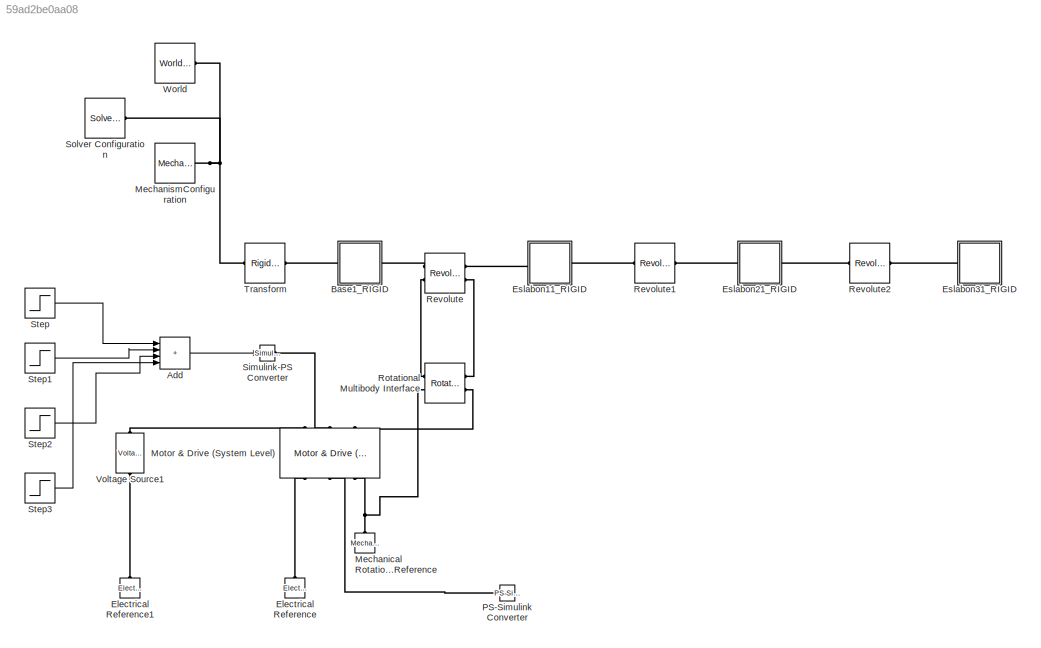
MODEL slx_59ad2be0aa08
KIND model
CONFIG AbsTol = auto
CONFIG EnableMultiTasking = off
CONFIG FixedStep = auto
CONFIG MaxStep = auto
CONFIG MinStep = auto
CONFIG RelTol = 1e-3
CONFIG SampleTimeConstraint = Unconstrained
CONFIG SolverName = VariableStepAuto
CONFIG StartTime = 0.0
CONFIG StopTime = 10.0
WORKSPACE source: external: MATLAB File  (data not in archive)
BLOCK [Sum] Add
  IconShape = rectangular
  Inputs = ++++
  Ports = [4, 1]
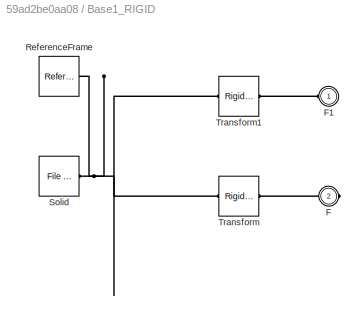
BLOCK [SubSystem] Base1_RIGID
  Ports = [0, 0, 0, 0, 0, 1, 1]
  RequestExecContextInheritance = off
BLOCK [PMIOPort] Base1_RIGID/F
  Port = 2
  Side = Right
BLOCK [PMIOPort] Base1_RIGID/F1
  Side = Left
BLOCK [Reference] Base1_RIGID/ReferenceFrame  REF=sm_lib/Frames and
Transforms/Reference
Frame
  Ports = [0, 0, 0, 0, 0, 0, 1]
  SourceBlock = sm_lib/Frames and\nTransforms/Reference\nFrame
  SourceProductBaseCode = MS
  SourceType = Reference\nFrame
BLOCK [Reference] Base1_RIGID/Solid  REF=sm_lib/Body Elements/File Solid
  Ports = [0, 0, 0, 0, 0, 0, 1]
  SourceBlock = sm_lib/Body Elements/File Solid
  SourceProductBaseCode = MS
  SourceType = File Solid
BLOCK [Reference] Base1_RIGID/Transform  REF=sm_lib/Frames and
Transforms/Rigid
Transform
  Ports = [0, 0, 0, 0, 0, 1, 1]
  SourceBlock = sm_lib/Frames and\nTransforms/Rigid\nTransform
  SourceProductBaseCode = MS
  SourceType = Rigid\nTransform
BLOCK [Reference] Base1_RIGID/Transform1  REF=sm_lib/Frames and
Transforms/Rigid
Transform
  Ports = [0, 0, 0, 0, 0, 1, 1]
  SourceBlock = sm_lib/Frames and\nTransforms/Rigid\nTransform
  SourceProductBaseCode = MS
  SourceType = Rigid\nTransform
BLOCK [Reference] Electrical Reference  REF=fl_lib/Electrical/Electrical Elements/Electrical Reference
  NameLocation = right
  Ports = [0, 0, 0, 0, 0, 1]
  SourceBlock = fl_lib/Electrical/Electrical Elements/Electrical Reference
  SourceProductBaseCode = SS
  SourceType = Electrical Reference
BLOCK [Reference] Electrical Reference1  REF=fl_lib/Electrical/Electrical Elements/Electrical Reference
  NameLocation = right
  Ports = [0, 0, 0, 0, 0, 1]
  SourceBlock = fl_lib/Electrical/Electrical Elements/Electrical Reference
  SourceProductBaseCode = SS
  SourceType = Electrical Reference
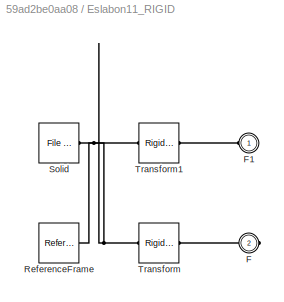
BLOCK [SubSystem] Eslabon11_RIGID
  Ports = [0, 0, 0, 0, 0, 1, 1]
  RequestExecContextInheritance = off
BLOCK [PMIOPort] Eslabon11_RIGID/F
  Port = 2
  Side = Right
BLOCK [PMIOPort] Eslabon11_RIGID/F1
  Side = Left
BLOCK [Reference] Eslabon11_RIGID/ReferenceFrame  REF=sm_lib/Frames and
Transforms/Reference
Frame
  Ports = [0, 0, 0, 0, 0, 0, 1]
  SourceBlock = sm_lib/Frames and\nTransforms/Reference\nFrame
  SourceProductBaseCode = MS
  SourceType = Reference\nFrame
BLOCK [Reference] Eslabon11_RIGID/Solid  REF=sm_lib/Body Elements/File Solid
  Ports = [0, 0, 0, 0, 0, 0, 1]
  SourceBlock = sm_lib/Body Elements/File Solid
  SourceProductBaseCode = MS
  SourceType = File Solid
BLOCK [Reference] Eslabon11_RIGID/Transform  REF=sm_lib/Frames and
Transforms/Rigid
Transform
  Ports = [0, 0, 0, 0, 0, 1, 1]
  SourceBlock = sm_lib/Frames and\nTransforms/Rigid\nTransform
  SourceProductBaseCode = MS
  SourceType = Rigid\nTransform
BLOCK [Reference] Eslabon11_RIGID/Transform1  REF=sm_lib/Frames and
Transforms/Rigid
Transform
  Ports = [0, 0, 0, 0, 0, 1, 1]
  SourceBlock = sm_lib/Frames and\nTransforms/Rigid\nTransform
  SourceProductBaseCode = MS
  SourceType = Rigid\nTransform
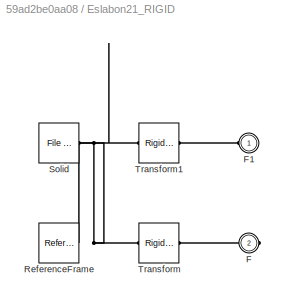
BLOCK [SubSystem] Eslabon21_RIGID
  Ports = [0, 0, 0, 0, 0, 1, 1]
  RequestExecContextInheritance = off
BLOCK [PMIOPort] Eslabon21_RIGID/F
  Port = 2
  Side = Right
BLOCK [PMIOPort] Eslabon21_RIGID/F1
  Side = Left
BLOCK [Reference] Eslabon21_RIGID/ReferenceFrame  REF=sm_lib/Frames and
Transforms/Reference
Frame
  Ports = [0, 0, 0, 0, 0, 0, 1]
  SourceBlock = sm_lib/Frames and\nTransforms/Reference\nFrame
  SourceProductBaseCode = MS
  SourceType = Reference\nFrame
BLOCK [Reference] Eslabon21_RIGID/Solid  REF=sm_lib/Body Elements/File Solid
  Ports = [0, 0, 0, 0, 0, 0, 1]
  SourceBlock = sm_lib/Body Elements/File Solid
  SourceProductBaseCode = MS
  SourceType = File Solid
BLOCK [Reference] Eslabon21_RIGID/Transform  REF=sm_lib/Frames and
Transforms/Rigid
Transform
  Ports = [0, 0, 0, 0, 0, 1, 1]
  SourceBlock = sm_lib/Frames and\nTransforms/Rigid\nTransform
  SourceProductBaseCode = MS
  SourceType = Rigid\nTransform
BLOCK [Reference] Eslabon21_RIGID/Transform1  REF=sm_lib/Frames and
Transforms/Rigid
Transform
  Ports = [0, 0, 0, 0, 0, 1, 1]
  SourceBlock = sm_lib/Frames and\nTransforms/Rigid\nTransform
  SourceProductBaseCode = MS
  SourceType = Rigid\nTransform
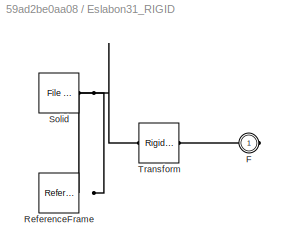
BLOCK [SubSystem] Eslabon31_RIGID
  Ports = [0, 0, 0, 0, 0, 0, 1]
  RequestExecContextInheritance = off
BLOCK [PMIOPort] Eslabon31_RIGID/F
  Side = Right
BLOCK [Reference] Eslabon31_RIGID/ReferenceFrame  REF=sm_lib/Frames and
Transforms/Reference
Frame
  Ports = [0, 0, 0, 0, 0, 0, 1]
  SourceBlock = sm_lib/Frames and\nTransforms/Reference\nFrame
  SourceProductBaseCode = MS
  SourceType = Reference\nFrame
BLOCK [Reference] Eslabon31_RIGID/Solid  REF=sm_lib/Body Elements/File Solid
  Ports = [0, 0, 0, 0, 0, 0, 1]
  SourceBlock = sm_lib/Body Elements/File Solid
  SourceProductBaseCode = MS
  SourceType = File Solid
BLOCK [Reference] Eslabon31_RIGID/Transform  REF=sm_lib/Frames and
Transforms/Rigid
Transform
  Ports = [0, 0, 0, 0, 0, 1, 1]
  SourceBlock = sm_lib/Frames and\nTransforms/Rigid\nTransform
  SourceProductBaseCode = MS
  SourceType = Rigid\nTransform
BLOCK [Reference] Mechanical Rotational Reference  REF=fl_lib/Mechanical/Rotational Elements/Mechanical
Rotational Reference
  NameLocation = right
  Ports = [0, 0, 0, 0, 0, 1]
  SourceBlock = fl_lib/Mechanical/Rotational Elements/Mechanical\nRotational Reference
  SourceProductBaseCode = SS
  SourceType = Mechanical\nRotational Reference
BLOCK [Reference] MechanismConfiguration  REF=sm_lib/Utilities/Mechanism
Configuration
  Ports = [0, 0, 0, 0, 0, 0, 1]
  SourceBlock = sm_lib/Utilities/Mechanism\nConfiguration
  SourceProductBaseCode = MS
  SourceType = Mechanism\nConfiguration
BLOCK [Reference] Motor & Drive (System Level)  REF=ee_lib/Electromechanical/Motor & Drive
(System Level)
  NameLocation = right
  Ports = [0, 0, 0, 0, 0, 3, 3]
  SourceBlock = ee_lib/Electromechanical/Motor & Drive\n(System Level)
  SourceProductBaseCode = PS
  SourceType = Motor & Drive\n(System Level)
BLOCK [Reference] PS-Simulink Converter  REF=nesl_utility/PS-Simulink
Converter
  Ports = [0, 1, 0, 0, 0, 1]
  SourceBlock = nesl_utility/PS-Simulink\nConverter
  SourceProductBaseCode = PW,SS
  SourceType = PS-Simulink\nConverter
BLOCK [Reference] Revolute  REF=sm_lib/Joints/Revolute Joint
  Ports = [0, 0, 0, 0, 0, 2, 2]
  SourceBlock = sm_lib/Joints/Revolute Joint
  SourceProductBaseCode = MS
  SourceType = Revolute Joint
BLOCK [Reference] Revolute1  REF=sm_lib/Joints/Revolute Joint
  Ports = [0, 0, 0, 0, 0, 1, 1]
  SourceBlock = sm_lib/Joints/Revolute Joint
  SourceProductBaseCode = MS
  SourceType = Revolute Joint
BLOCK [Reference] Revolute2  REF=sm_lib/Joints/Revolute Joint
  Ports = [0, 0, 0, 0, 0, 1, 1]
  SourceBlock = sm_lib/Joints/Revolute Joint
  SourceProductBaseCode = MS
  SourceType = Revolute Joint
BLOCK [Reference] Rotational Multibody Interface  REF=fl_lib/Mechanical/Multibody Interfaces/Rotational Multibody
Interface
  Ports = [0, 0, 0, 0, 0, 2, 2]
  SourceBlock = fl_lib/Mechanical/Multibody Interfaces/Rotational Multibody\nInterface
  SourceProductBaseCode = SS
  SourceType = Rotational Multibody\nInterface
BLOCK [Reference] Simulink-PS Converter  REF=nesl_utility/Simulink-PS
Converter
  Ports = [1, 0, 0, 0, 0, 0, 1]
  SourceBlock = nesl_utility/Simulink-PS\nConverter
  SourceProductBaseCode = PW,SS
  SourceType = Simulink-PS\nConverter
BLOCK [Reference] Solver Configuration  REF=nesl_utility/Solver
Configuration
  Ports = [0, 0, 0, 0, 0, 0, 1]
  SourceBlock = nesl_utility/Solver\nConfiguration
  SourceProductBaseCode = PW,SS
  SourceType = Solver\nConfiguration
BLOCK [Step] Step
  After = 0.5
  SampleTime = 0
  Time = 0
BLOCK [Step] Step1
  After = -0.5
  SampleTime = 0
  Time = 2
BLOCK [Step] Step2
  After = -0.5
  SampleTime = 0
  Time = 4
BLOCK [Step] Step3
  After = 0.5
  SampleTime = 0
  Time = 6
BLOCK [Reference] Transform  REF=sm_lib/Frames and
Transforms/Rigid
Transform
  Ports = [0, 0, 0, 0, 0, 1, 1]
  SourceBlock = sm_lib/Frames and\nTransforms/Rigid\nTransform
  SourceProductBaseCode = MS
  SourceType = Rigid\nTransform
BLOCK [Reference] Voltage Source1  REF=ee_lib/Sources/Voltage Source
  NameLocation = right
  Ports = [0, 0, 0, 0, 0, 1, 1]
  SourceBlock = ee_lib/Sources/Voltage Source
  SourceProductBaseCode = PS
  SourceType = Voltage Source
BLOCK [Reference] World  REF=sm_lib/Frames and
Transforms/World Frame
  Ports = [0, 0, 0, 0, 0, 0, 1]
  SourceBlock = sm_lib/Frames and\nTransforms/World Frame
  SourceProductBaseCode = MS
  SourceType = World Frame
LINE Add:1 -> Simulink-PS Converter:1
LINE Step1:1 -> Add:2
LINE Step2:1 -> Add:3
LINE Step3:1 -> Add:4
LINE Step:1 -> Add:1
PLINE Base1_RIGID/F1:RConn1 -- Base1_RIGID/Transform1:RConn1
PLINE Base1_RIGID/F:RConn1 -- Base1_RIGID/Transform:RConn1
PNET net1: Base1_RIGID/ReferenceFrame:RConn1 -- Base1_RIGID/Solid:RConn1 -- Base1_RIGID/Transform1:LConn1 -- Base1_RIGID/Transform:LConn1
PLINE Base1_RIGID:LConn1 -- Revolute:LConn1
PLINE Base1_RIGID:RConn1 -- Transform:RConn1
PLINE Electrical Reference1:LConn1 -- Voltage Source1:RConn1
PLINE Electrical Reference:LConn1 -- Motor & Drive (System Level):RConn1
PLINE Eslabon11_RIGID/F1:RConn1 -- Eslabon11_RIGID/Transform1:RConn1
PLINE Eslabon11_RIGID/F:RConn1 -- Eslabon11_RIGID/Transform:RConn1
PNET net2: Eslabon11_RIGID/ReferenceFrame:RConn1 -- Eslabon11_RIGID/Solid:RConn1 -- Eslabon11_RIGID/Transform1:LConn1 -- Eslabon11_RIGID/Transform:LConn1
PLINE Eslabon11_RIGID:LConn1 -- Revolute1:LConn1
PLINE Eslabon11_RIGID:RConn1 -- Revolute:RConn1
PLINE Eslabon21_RIGID/F1:RConn1 -- Eslabon21_RIGID/Transform1:RConn1
PLINE Eslabon21_RIGID/F:RConn1 -- Eslabon21_RIGID/Transform:RConn1
PNET net3: Eslabon21_RIGID/ReferenceFrame:RConn1 -- Eslabon21_RIGID/Solid:RConn1 -- Eslabon21_RIGID/Transform1:LConn1 -- Eslabon21_RIGID/Transform:LConn1
PLINE Eslabon21_RIGID:LConn1 -- Revolute2:LConn1
PLINE Eslabon21_RIGID:RConn1 -- Revolute1:RConn1
PLINE Eslabon31_RIGID/F:RConn1 -- Eslabon31_RIGID/Transform:RConn1
PNET net4: Eslabon31_RIGID/ReferenceFrame:RConn1 -- Eslabon31_RIGID/Solid:RConn1 -- Eslabon31_RIGID/Transform:LConn1
PLINE Eslabon31_RIGID:RConn1 -- Revolute2:RConn1
PNET net5: Mechanical Rotational Reference:LConn1 -- Motor & Drive (System Level):RConn3 -- Rotational Multibody Interface:LConn2
PNET net6: MechanismConfiguration:RConn1 -- Solver Configuration:RConn1 -- Transform:LConn1 -- World:RConn1
PLINE Motor & Drive (System Level):LConn1 -- Voltage Source1:LConn1
PLINE Motor & Drive (System Level):LConn2 -- Simulink-PS Converter:RConn1
PLINE Motor & Drive (System Level):LConn3 -- Rotational Multibody Interface:RConn2
PLINE Motor & Drive (System Level):RConn2 -- PS-Simulink Converter:LConn1
PLINE Revolute:LConn2 -- Rotational Multibody Interface:LConn1
PLINE Revolute:RConn2 -- Rotational Multibody Interface:RConn1
note: PNET lines group multi-terminal physical nets as a canonical sorted terminal list (undirected conserving connections); 2-terminal nets keep the pairwise PLINE form
